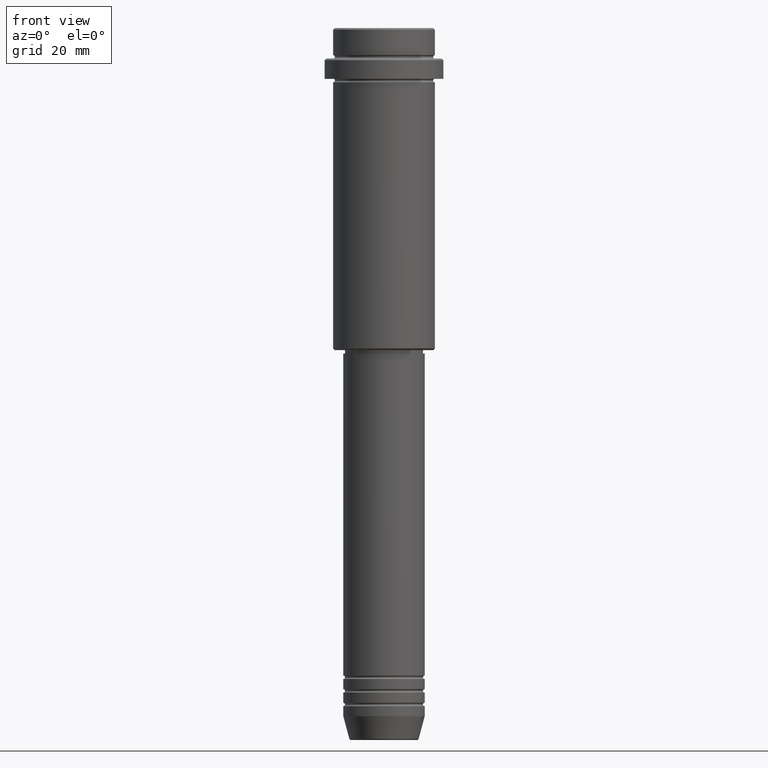
[diagram: clean part render]
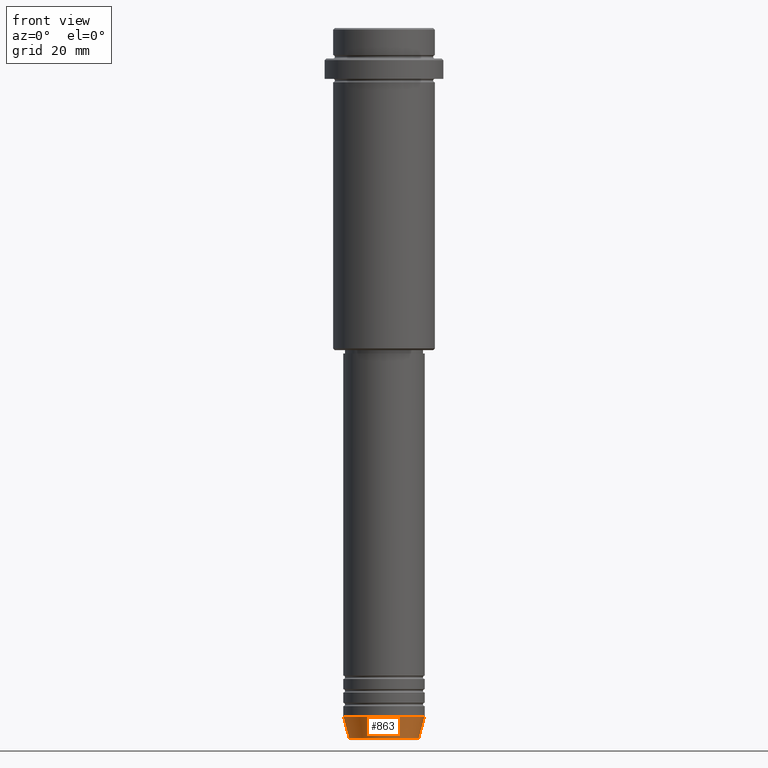
[diagram: same view with one face highlighted and labeled with its STEP entity id]
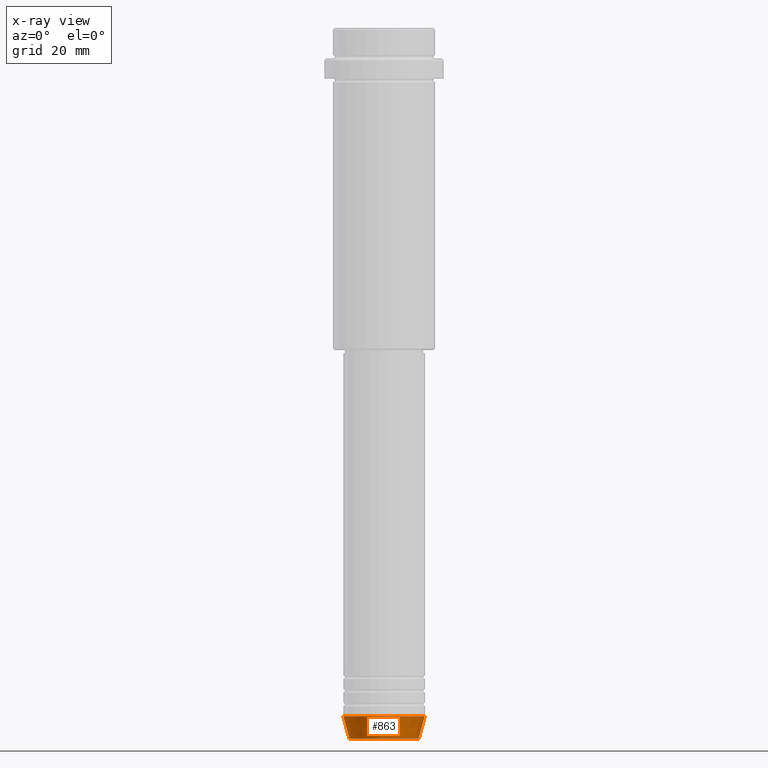
[diagram: x-ray of the same camera — body ghosted, the highlighted face saturated]
A machine part, front view. The second image highlights one B-rep face of the part: STEP entity #863.
The next image is the same camera in x-ray: the body ghosted, the highlighted face saturated — about 0% of this face is hidden behind the body in this view.
In plain terms, the highlighted conical surface has half-angle 15 deg.
Its self-contained STEP definition (entity closure, byte-faithful):
#35 = VERTEX_POINT ( 'NONE', #1209 ) ;
#44 = VECTOR ( 'NONE', #677, 1000.000000000000114 ) ;
#79 = ORIENTED_EDGE ( 'NONE', *, *, #1006, .T. ) ;
#191 = AXIS2_PLACEMENT_3D ( 'NONE', #837, #732, #215 ) ;
#196 = ORIENTED_EDGE ( 'NONE', *, *, #898, .F. ) ;
#215 = DIRECTION ( 'NONE',  ( 1.000000000000000000, 0.000000000000000000, 0.000000000000000000 ) ) ;
#219 = FACE_OUTER_BOUND ( 'NONE', #599, .T. ) ;
#292 = EDGE_CURVE ( 'NONE', #35, #297, #307, .T. ) ;
#297 = VERTEX_POINT ( 'NONE', #648 ) ;
#302 = CONICAL_SURFACE ( 'NONE', #737, 12.00000000000000000, 0.2617993877991491303 ) ;
#307 = CIRCLE ( 'NONE', #191, 12.00000000000000000 ) ;
#338 = LINE ( 'NONE', #444, #44 ) ;
#380 = DIRECTION ( 'NONE',  ( -0.000000000000000000, -0.000000000000000000, 1.000000000000000000 ) ) ;
#396 = ORIENTED_EDGE ( 'NONE', *, *, #292, .F. ) ;
#405 = VERTEX_POINT ( 'NONE', #777 ) ;
#444 = CARTESIAN_POINT ( 'NONE',  ( -12.00000000000000000, 1.469576158976823947E-15, -203.0000000000000000 ) ) ;
#448 = DIRECTION ( 'NONE',  ( 1.000000000000000000, 0.000000000000000000, 0.000000000000000000 ) ) ;
#495 = DIRECTION ( 'NONE',  ( 0.2588190451025205174, 0.000000000000000000, 0.9659258262890684232 ) ) ;
#599 = EDGE_LOOP ( 'NONE', ( #196, #79, #1257, #396 ) ) ;
#603 = EDGE_CURVE ( 'NONE', #405, #297, #1137, .T. ) ;
#604 = CARTESIAN_POINT ( 'NONE',  ( 12.00000000000000000, 0.000000000000000000, -203.0000000000000000 ) ) ;
#648 = CARTESIAN_POINT ( 'NONE',  ( 12.00000000000000000, 0.000000000000000000, -203.0000000000000000 ) ) ;
#677 = DIRECTION ( 'NONE',  ( -0.2588190451025205174, 3.169619151431761243E-17, 0.9659258262890684232 ) ) ;
#732 = DIRECTION ( 'NONE',  ( -0.000000000000000000, -0.000000000000000000, 1.000000000000000000 ) ) ;
#737 = AXIS2_PLACEMENT_3D ( 'NONE', #784, #1336, #448 ) ;
#777 = CARTESIAN_POINT ( 'NONE',  ( 10.22365507213720015, 0.000000000000000000, -209.6294095225512706 ) ) ;
#784 = CARTESIAN_POINT ( 'NONE',  ( 0.000000000000000000, 0.000000000000000000, -203.0000000000000000 ) ) ;
#827 = VECTOR ( 'NONE', #495, 1000.000000000000114 ) ;
#837 = CARTESIAN_POINT ( 'NONE',  ( 0.000000000000000000, 0.000000000000000000, -203.0000000000000000 ) ) ;
#863 = ADVANCED_FACE ( 'NONE', ( #219 ), #302, .T. ) ;
#898 = EDGE_CURVE ( 'NONE', #900, #35, #338, .T. ) ;
#900 = VERTEX_POINT ( 'NONE', #1223 ) ;
#941 = CIRCLE ( 'NONE', #1167, 10.22365507213720015 ) ;
#1006 = EDGE_CURVE ( 'NONE', #900, #405, #941, .T. ) ;
#1045 = DIRECTION ( 'NONE',  ( 1.000000000000000000, 0.000000000000000000, 0.000000000000000000 ) ) ;
#1137 = LINE ( 'NONE', #604, #827 ) ;
#1167 = AXIS2_PLACEMENT_3D ( 'NONE', #1413, #380, #1045 ) ;
#1209 = CARTESIAN_POINT ( 'NONE',  ( -12.00000000000000000, 1.469576158976823947E-15, -203.0000000000000000 ) ) ;
#1223 = CARTESIAN_POINT ( 'NONE',  ( -10.22365507213720015, 1.360806402472383139E-15, -209.6294095225512706 ) ) ;
#1257 = ORIENTED_EDGE ( 'NONE', *, *, #603, .T. ) ;
#1336 = DIRECTION ( 'NONE',  ( -0.000000000000000000, -0.000000000000000000, 1.000000000000000000 ) ) ;
#1413 = CARTESIAN_POINT ( 'NONE',  ( 0.000000000000000000, 0.000000000000000000, -209.6294095225512706 ) ) ;